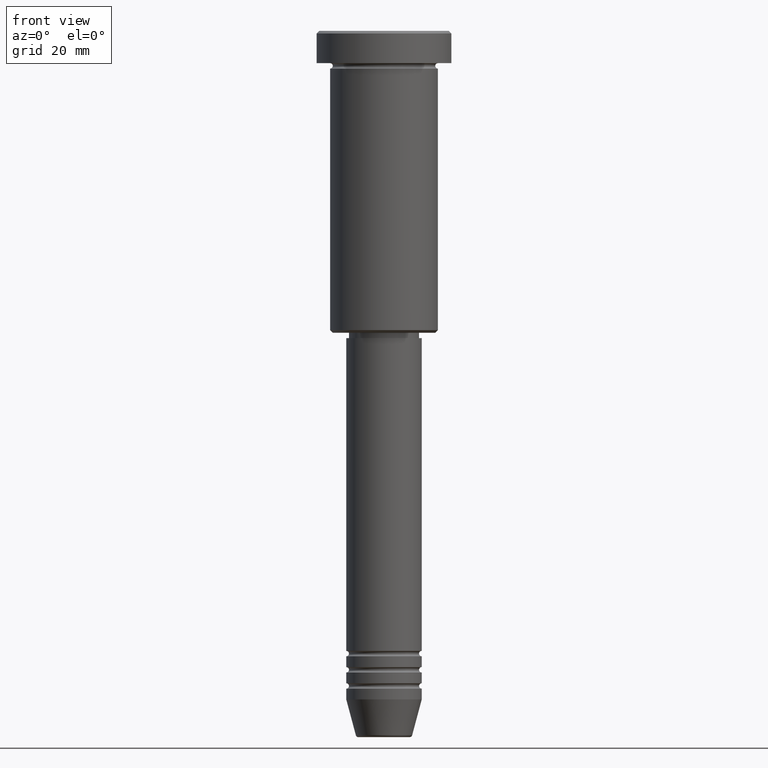
[diagram: clean part render]
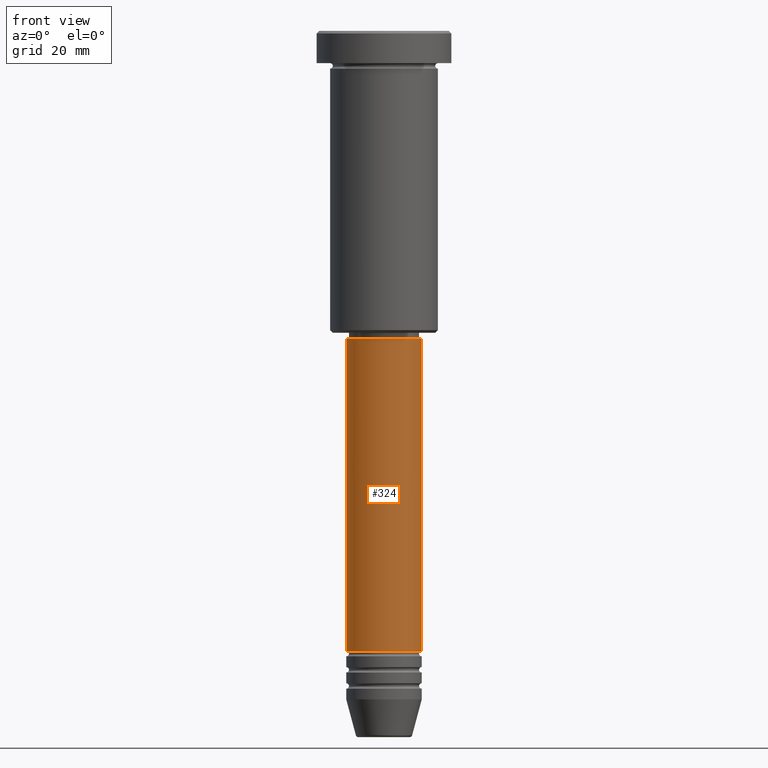
[diagram: same view with one face highlighted and labeled with its STEP entity id]
A machine part, front view. The second image highlights one B-rep face of the part: STEP entity #324.
In plain terms, the highlighted cylindrical surface (partial cylindrical patch) has radius 7 mm, axis along (-0, -0, 1).
Its self-contained STEP definition (entity closure, byte-faithful):
#67 = CIRCLE ( 'NONE', #820, 7.000000000000000000 ) ;
#110 = AXIS2_PLACEMENT_3D ( 'NONE', #135, #516, #778 ) ;
#117 = VERTEX_POINT ( 'NONE', #1078 ) ;
#135 = CARTESIAN_POINT ( 'NONE',  ( 0.000000000000000000, 0.000000000000000000, -114.9999999999999574 ) ) ;
#136 = CARTESIAN_POINT ( 'NONE',  ( 0.000000000000000000, 0.000000000000000000, 0.000000000000000000 ) ) ;
#190 = ORIENTED_EDGE ( 'NONE', *, *, #323, .T. ) ;
#202 = DIRECTION ( 'NONE',  ( -0.000000000000000000, -0.000000000000000000, 1.000000000000000000 ) ) ;
#237 = CARTESIAN_POINT ( 'NONE',  ( 7.000000000000000000, 0.000000000000000000, -114.9999999999999574 ) ) ;
#302 = LINE ( 'NONE', #915, #732 ) ;
#303 = ORIENTED_EDGE ( 'NONE', *, *, #418, .F. ) ;
#314 = DIRECTION ( 'NONE',  ( 1.000000000000000000, 0.000000000000000000, 0.000000000000000000 ) ) ;
#323 = EDGE_CURVE ( 'NONE', #837, #824, #302, .T. ) ;
#324 = ADVANCED_FACE ( 'NONE', ( #1149 ), #874, .T. ) ;
#379 = EDGE_LOOP ( 'NONE', ( #303, #563, #190, #690 ) ) ;
#418 = EDGE_CURVE ( 'NONE', #505, #117, #959, .T. ) ;
#465 = CARTESIAN_POINT ( 'NONE',  ( 0.000000000000000000, 0.000000000000000000, -57.00000000000000000 ) ) ;
#505 = VERTEX_POINT ( 'NONE', #724 ) ;
#516 = DIRECTION ( 'NONE',  ( -0.000000000000000000, -0.000000000000000000, 1.000000000000000000 ) ) ;
#563 = ORIENTED_EDGE ( 'NONE', *, *, #864, .T. ) ;
#597 = EDGE_CURVE ( 'NONE', #117, #824, #67, .T. ) ;
#601 = CARTESIAN_POINT ( 'NONE',  ( 7.000000000000000000, 0.000000000000000000, -57.00000000000000000 ) ) ;
#690 = ORIENTED_EDGE ( 'NONE', *, *, #597, .F. ) ;
#724 = CARTESIAN_POINT ( 'NONE',  ( -7.000000000000000000, 8.572527594031473190E-16, -114.9999999999999574 ) ) ;
#732 = VECTOR ( 'NONE', #827, 1000.000000000000000 ) ;
#742 = VECTOR ( 'NONE', #964, 1000.000000000000000 ) ;
#778 = DIRECTION ( 'NONE',  ( 1.000000000000000000, 0.000000000000000000, 0.000000000000000000 ) ) ;
#820 = AXIS2_PLACEMENT_3D ( 'NONE', #465, #202, #940 ) ;
#824 = VERTEX_POINT ( 'NONE', #601 ) ;
#827 = DIRECTION ( 'NONE',  ( -0.000000000000000000, -0.000000000000000000, 1.000000000000000000 ) ) ;
#837 = VERTEX_POINT ( 'NONE', #237 ) ;
#853 = CIRCLE ( 'NONE', #110, 7.000000000000000000 ) ;
#864 = EDGE_CURVE ( 'NONE', #505, #837, #853, .T. ) ;
#869 = CARTESIAN_POINT ( 'NONE',  ( -7.000000000000000000, 8.572527594031473190E-16, 0.000000000000000000 ) ) ;
#874 = CYLINDRICAL_SURFACE ( 'NONE', #944, 7.000000000000000000 ) ;
#885 = DIRECTION ( 'NONE',  ( -0.000000000000000000, -0.000000000000000000, 1.000000000000000000 ) ) ;
#915 = CARTESIAN_POINT ( 'NONE',  ( 7.000000000000000000, 0.000000000000000000, 0.000000000000000000 ) ) ;
#940 = DIRECTION ( 'NONE',  ( 1.000000000000000000, 0.000000000000000000, 0.000000000000000000 ) ) ;
#944 = AXIS2_PLACEMENT_3D ( 'NONE', #136, #885, #314 ) ;
#959 = LINE ( 'NONE', #869, #742 ) ;
#964 = DIRECTION ( 'NONE',  ( -0.000000000000000000, -0.000000000000000000, 1.000000000000000000 ) ) ;
#1078 = CARTESIAN_POINT ( 'NONE',  ( -7.000000000000000000, 8.572527594031473190E-16, -57.00000000000000000 ) ) ;
#1149 = FACE_OUTER_BOUND ( 'NONE', #379, .T. ) ;